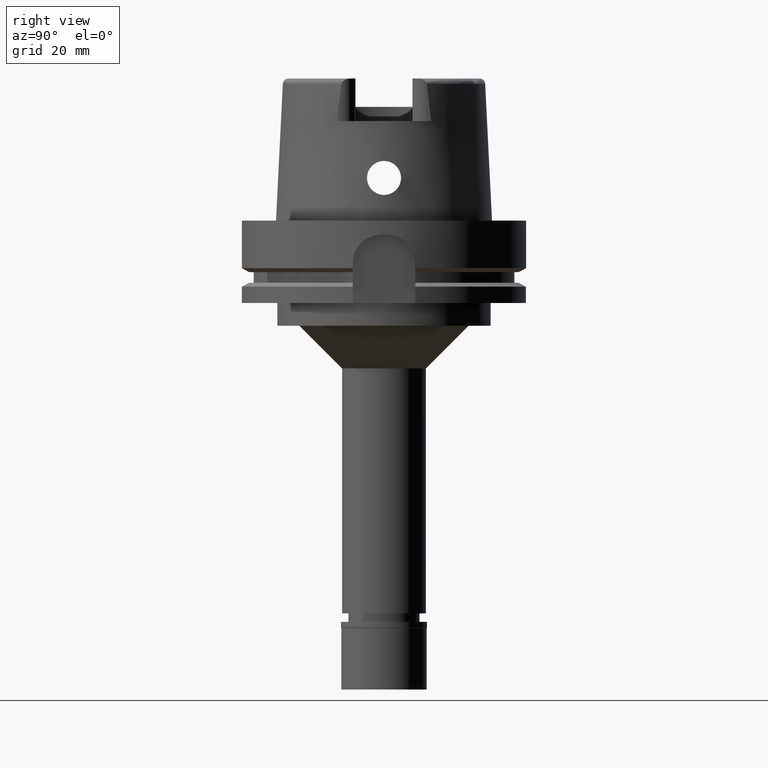
[diagram: clean part render]
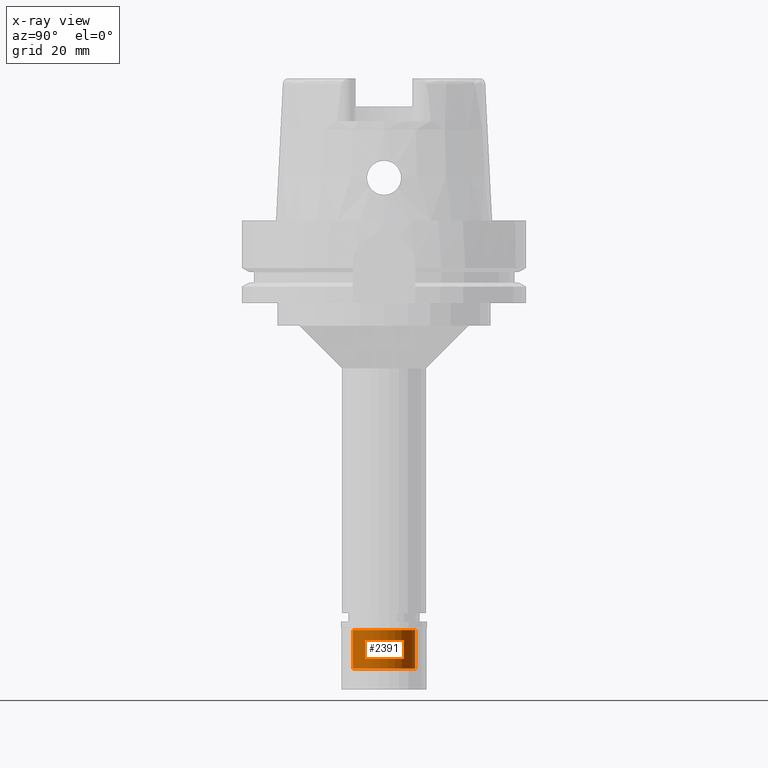
[diagram: x-ray — body ghosted, one internal face saturated and labeled with its STEP entity id]
A machine part, right view, then the same camera in x-ray: the body is ghosted and one INTERNAL B-rep face — a face not visible from any outside direction — is saturated and labeled: STEP entity #2391.
In plain terms, the highlighted cylindrical surface (edge-blend (fillet) strip) has radius 11 mm, axis along (0, 0, -1).
Its self-contained STEP definition (entity closure, byte-faithful):
#86 = CARTESIAN_POINT ( 'NONE',  ( 0.0000000000000000000, -11.00000000000000000, -16.50000000000000000 ) ) ;
#146 = AXIS2_PLACEMENT_3D ( 'NONE', #2923, #1606, #2097 ) ;
#153 = CARTESIAN_POINT ( 'NONE',  ( 0.0000000000000000000, 11.00000000000000000, -16.50000000000000000 ) ) ;
#197 = VERTEX_POINT ( 'NONE', #428 ) ;
#269 = EDGE_CURVE ( 'NONE', #1343, #1979, #2014, .T. ) ;
#398 = CYLINDRICAL_SURFACE ( 'NONE', #146, 11.00000000000000000 ) ;
#428 = CARTESIAN_POINT ( 'NONE',  ( 0.0000000000000000000, 11.00000000000000000, -2.899999999999999911 ) ) ;
#504 = FACE_OUTER_BOUND ( 'NONE', #2971, .T. ) ;
#563 = CARTESIAN_POINT ( 'NONE',  ( 0.0000000000000000000, 0.0000000000000000000, -2.899999999999999911 ) ) ;
#676 = ORIENTED_EDGE ( 'NONE', *, *, #269, .T. ) ;
#888 = DIRECTION ( 'NONE',  ( 0.0000000000000000000, 0.0000000000000000000, -1.000000000000000000 ) ) ;
#904 = EDGE_CURVE ( 'NONE', #1979, #197, #3993, .T. ) ;
#909 = CARTESIAN_POINT ( 'NONE',  ( 0.0000000000000000000, 11.00000000000000000, -16.50000000000000000 ) ) ;
#973 = CARTESIAN_POINT ( 'NONE',  ( 0.0000000000000000000, 0.0000000000000000000, -16.50000000000000000 ) ) ;
#992 = VERTEX_POINT ( 'NONE', #153 ) ;
#1039 = DIRECTION ( 'NONE',  ( 0.0000000000000000000, -1.000000000000000000, 0.0000000000000000000 ) ) ;
#1067 = DIRECTION ( 'NONE',  ( 0.0000000000000000000, 0.0000000000000000000, 1.000000000000000000 ) ) ;
#1343 = VERTEX_POINT ( 'NONE', #3030 ) ;
#1392 = EDGE_CURVE ( 'NONE', #992, #197, #3036, .T. ) ;
#1606 = DIRECTION ( 'NONE',  ( 0.0000000000000000000, 0.0000000000000000000, -1.000000000000000000 ) ) ;
#1844 = CIRCLE ( 'NONE', #3476, 11.00000000000000000 ) ;
#1979 = VERTEX_POINT ( 'NONE', #3903 ) ;
#2014 = LINE ( 'NONE', #86, #4076 ) ;
#2097 = DIRECTION ( 'NONE',  ( 0.0000000000000000000, -1.000000000000000000, 0.0000000000000000000 ) ) ;
#2361 = ORIENTED_EDGE ( 'NONE', *, *, #904, .T. ) ;
#2391 = ADVANCED_FACE ( 'NONE', ( #504 ), #398, .F. ) ;
#2545 = VECTOR ( 'NONE', #2630, 1000.000000000000000 ) ;
#2565 = AXIS2_PLACEMENT_3D ( 'NONE', #563, #1067, #1039 ) ;
#2588 = DIRECTION ( 'NONE',  ( 0.0000000000000000000, 1.000000000000000000, 0.0000000000000000000 ) ) ;
#2630 = DIRECTION ( 'NONE',  ( 0.0000000000000000000, 0.0000000000000000000, 1.000000000000000000 ) ) ;
#2909 = ORIENTED_EDGE ( 'NONE', *, *, #3832, .T. ) ;
#2923 = CARTESIAN_POINT ( 'NONE',  ( 0.0000000000000000000, 0.0000000000000000000, 0.0000000000000000000 ) ) ;
#2971 = EDGE_LOOP ( 'NONE', ( #2909, #676, #2361, #3286 ) ) ;
#3030 = CARTESIAN_POINT ( 'NONE',  ( 0.0000000000000000000, -11.00000000000000000, -16.50000000000000000 ) ) ;
#3036 = LINE ( 'NONE', #909, #2545 ) ;
#3055 = DIRECTION ( 'NONE',  ( 0.0000000000000000000, 0.0000000000000000000, 1.000000000000000000 ) ) ;
#3286 = ORIENTED_EDGE ( 'NONE', *, *, #1392, .F. ) ;
#3476 = AXIS2_PLACEMENT_3D ( 'NONE', #973, #888, #2588 ) ;
#3832 = EDGE_CURVE ( 'NONE', #992, #1343, #1844, .T. ) ;
#3903 = CARTESIAN_POINT ( 'NONE',  ( 0.0000000000000000000, -11.00000000000000000, -2.899999999999999911 ) ) ;
#3993 = CIRCLE ( 'NONE', #2565, 11.00000000000000000 ) ;
#4076 = VECTOR ( 'NONE', #3055, 1000.000000000000000 ) ;